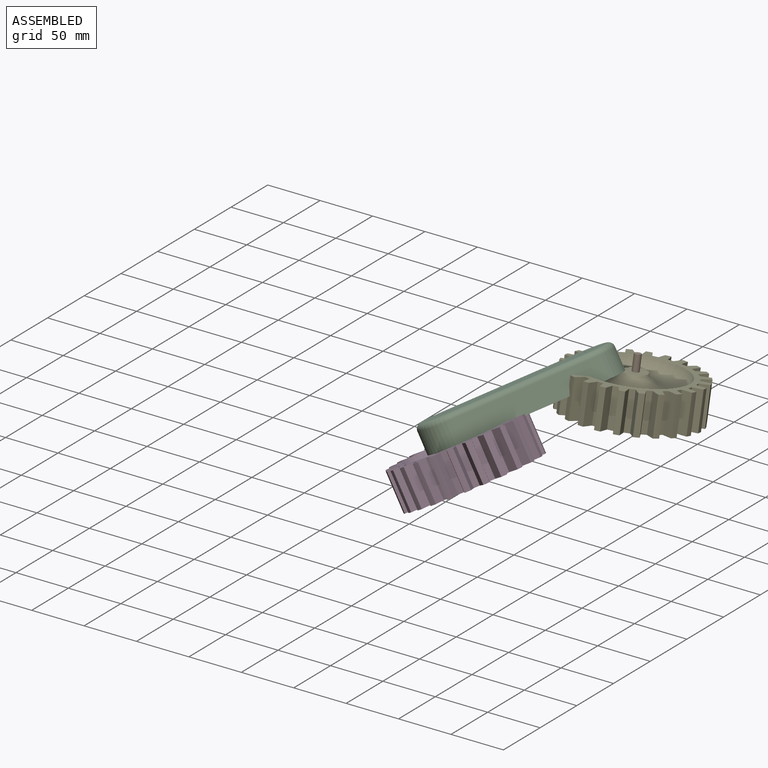
[diagram: assembled view]
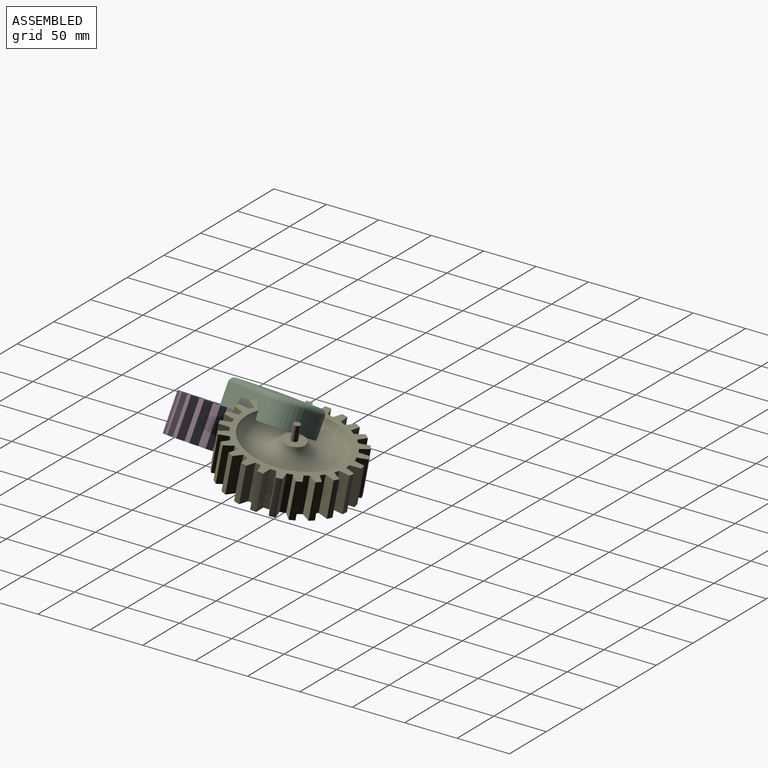
[diagram: assembled view, second angle]
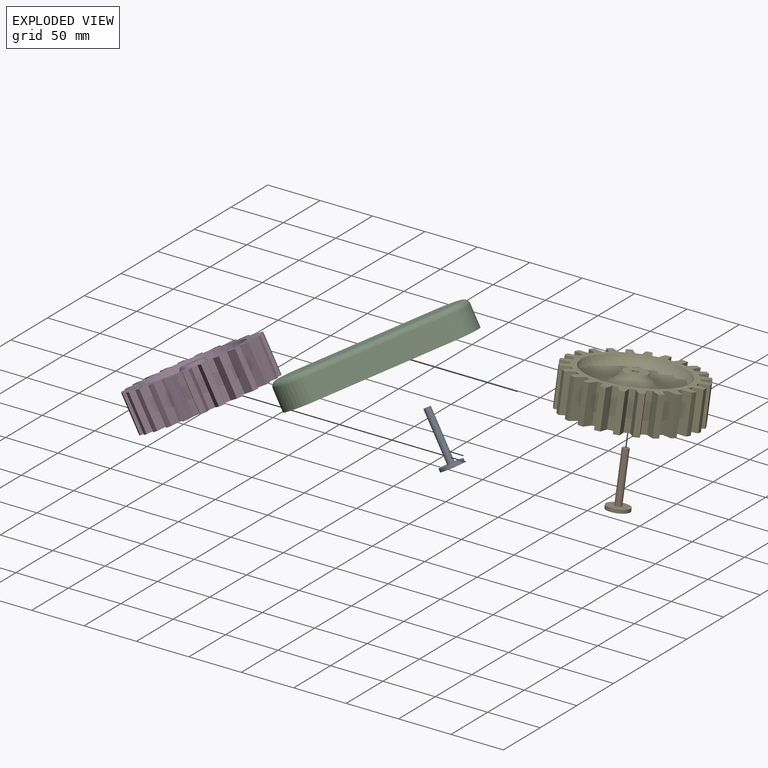
[diagram: exploded view]
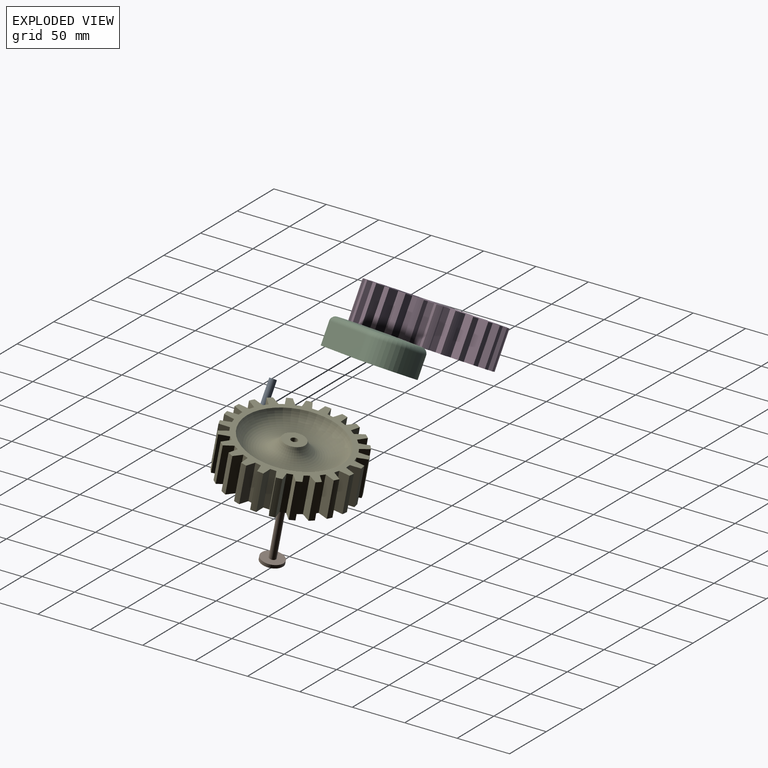
[diagram: exploded view, second angle]
ASSEMBLY  parts=5 mates=4
PART A: 5 faces, bbox 21.1x50.8x21.1 mm
  f0: cylinder r=3.17mm len=47.63mm, axis (0,1,0), area 950.1mm2, adj f2,f4
  f1: cylinder r=10.57mm len=21.14mm, axis (0,1,0), area 210.9mm2, adj f2,f3
  f2: plane 21.14x21.14mm, normal (0,-1,0), area 319.4mm2, adj f0,f1
  f3: plane 21.14x21.14mm, normal (0,1,0), area 351.1mm2, adj f1
  f4: plane 6.35x6.35mm, normal (0,-1,0), area 31.7mm2, adj f0
PART B: same geometry as A
PART C: 12 faces, bbox 172.6x25.4x55 mm
  f0: plane 117.6x20.32mm, normal (0,0,-1), area 2389.7mm2, adj f1,f3,f7,f9
  f1: cylinder r=25.4mm len=50.8mm, axis (0,1,0), area 1621.5mm2, adj f0,f2,f7,f11
  f2: plane 117.6x20.32mm, normal (0,0,1), area 2389.7mm2, adj f1,f3,f7,f10
  f3: cylinder r=25.4mm len=50.8mm, axis (0,1,0), area 1621.5mm2, adj f0,f2,f7,f8
  f4: cylinder r=3.17mm len=25.4mm, axis (0,1,0), area 506.7mm2, adj f6,f7
  f5: cylinder r=3.17mm len=25.4mm, axis (0,1,0), area 506.7mm2, adj f6,f7
  f6: plane 158.24x40.64mm, normal (0,-1,0), area 6013.2mm2, adj f4,f5,f8,f9,f10,f11
  f7: plane 168.4x50.8mm, normal (0,1,0), area 7937.7mm2, adj f0,f1,f2,f3,f4,f5
  f8: torus R=20.32mm, axis (0,-1,0), area 590.5mm2, adj f3,f6,f9,f10
  f9: cylinder r=5.08mm len=117.6mm, axis (-1,0,0), area 938.4mm2, adj f0,f6,f8,f11
  f10: cylinder r=5.08mm len=117.6mm, axis (1,0,0), area 938.4mm2, adj f2,f6,f8,f11
  f11: torus R=20.32mm, axis (0,-1,0), area 590.5mm2, adj f1,f6,f9,f10
PART D: 103 faces, bbox 50.9x120.8x120.8 mm
  f0: cylinder r=60.63mm len=35.93mm, axis (1,0,0), area 193.5mm2, adj f3,f92,f94,f100
  f1: plane 35.93x5.02mm, normal (0,0.26,0.97), area 186.8mm2, adj f2,f3,f92,f94
  f2: plane 35.93x8.23mm, normal (0,-0.86,0.51), area 344.8mm2, adj f1,f4,f92,f94
  f3: plane 35.93x9.6mm, normal (0,1,0.02), area 344.8mm2, adj f0,f1,f92,f94
  f4: cylinder r=60.63mm len=35.93mm, axis (1,0,0), area 193.5mm2, adj f2,f7,f92,f94
  f5: plane 35.93x4.5mm, normal (0,0.5,0.87), area 186.8mm2, adj f6,f7,f92,f94
  f6: plane 35.93x6.9mm, normal (0,-0.7,0.72), area 344.8mm2, adj f5,f8,f92,f94
  f7: plane 35.93x9.31mm, normal (0,0.97,-0.24), area 344.8mm2, adj f4,f5,f92,f94
  f8: cylinder r=60.63mm len=35.93mm, axis (1,0,0), area 193.5mm2, adj f6,f11,f92,f94
  f9: plane 35.93x3.68mm, normal (0,0.71,0.71), area 186.8mm2, adj f10,f11,f92,f94
  f10: plane 35.93x8.39mm, normal (0,-0.49,0.87), area 344.8mm2, adj f9,f12,f92,f94
  f11: plane 35.93x8.39mm, normal (0,0.87,-0.49), area 344.8mm2, adj f8,f9,f92,f94
  f12: cylinder r=60.63mm len=35.93mm, axis (1,0,0), area 193.5mm2, adj f10,f15,f92,f94
  f13: plane 35.93x4.5mm, normal (0,0.87,0.5), area 186.8mm2, adj f14,f15,f92,f94
  f14: plane 35.93x9.31mm, normal (0,-0.24,0.97), area 344.8mm2, adj f13,f16,f92,f94
  f15: plane 35.93x6.9mm, normal (0,0.72,-0.7), area 344.8mm2, adj f12,f13,f92,f94
  f16: cylinder r=60.63mm len=35.93mm, axis (1,0,0), area 193.5mm2, adj f14,f19,f92,f94
  f17: plane 35.93x5.02mm, normal (0,0.97,0.26), area 186.8mm2, adj f18,f19,f92,f94
  f18: plane 35.93x9.6mm, normal (0,0.02,1), area 344.8mm2, adj f17,f20,f92,f94
  f19: plane 35.93x8.23mm, normal (0,0.51,-0.86), area 344.8mm2, adj f16,f17,f92,f94
  f20: cylinder r=60.63mm len=35.93mm, axis (1,0,0), area 193.5mm2, adj f18,f23,f92,f94
  f21: plane 35.93x5.2mm, normal (0,1,0), area 186.8mm2, adj f22,f23,f92,f94
  f22: plane 35.93x9.23mm, normal (0,0.27,0.96), area 344.8mm2, adj f21,f24,f92,f94
  f23: plane 35.93x9.23mm, normal (0,0.27,-0.96), area 344.8mm2, adj f20,f21,f92,f94
  f24: cylinder r=60.63mm len=35.93mm, axis (1,0,0), area 193.5mm2, adj f22,f27,f92,f94
  f25: plane 35.93x5.02mm, normal (0,0.97,-0.26), area 186.8mm2, adj f26,f27,f92,f94
  f26: plane 35.93x8.23mm, normal (0,0.51,0.86), area 344.8mm2, adj f25,f28,f92,f94
  f27: plane 35.93x9.6mm, normal (0,0.02,-1), area 344.8mm2, adj f24,f25,f92,f94
  f28: cylinder r=60.63mm len=35.93mm, axis (1,0,0), area 193.5mm2, adj f26,f31,f92,f94
  f29: plane 35.93x4.5mm, normal (0,0.87,-0.5), area 186.8mm2, adj f30,f31,f92,f94
  f30: plane 35.93x6.9mm, normal (0,0.72,0.7), area 344.8mm2, adj f29,f32,f92,f94
  f31: plane 35.93x9.31mm, normal (0,-0.24,-0.97), area 344.8mm2, adj f28,f29,f92,f94
  f32: cylinder r=60.63mm len=35.93mm, axis (1,0,0), area 193.5mm2, adj f30,f35,f92,f94
  f33: plane 35.93x3.68mm, normal (0,0.71,-0.71), area 186.8mm2, adj f34,f35,f92,f94
  f34: plane 35.93x8.39mm, normal (0,0.87,0.49), area 344.8mm2, adj f33,f36,f92,f94
  f35: plane 35.93x8.39mm, normal (0,-0.49,-0.87), area 344.8mm2, adj f32,f33,f92,f94
  f36: cylinder r=60.63mm len=35.93mm, axis (1,0,0), area 193.5mm2, adj f34,f39,f92,f94
  f37: plane 35.93x4.5mm, normal (0,0.5,-0.87), area 186.8mm2, adj f38,f39,f92,f94
  f38: plane 35.93x9.31mm, normal (0,0.97,0.24), area 344.8mm2, adj f37,f40,f92,f94
  f39: plane 35.93x6.9mm, normal (0,-0.7,-0.72), area 344.8mm2, adj f36,f37,f92,f94
  f40: cylinder r=60.63mm len=35.93mm, axis (1,0,0), area 193.5mm2, adj f38,f43,f92,f94
  f41: plane 35.93x5.02mm, normal (0,0.26,-0.97), area 186.8mm2, adj f42,f43,f92,f94
  f42: plane 35.93x9.6mm, normal (0,1,-0.02), area 344.8mm2, adj f41,f44,f92,f94
  f43: plane 35.93x8.23mm, normal (0,-0.86,-0.51), area 344.8mm2, adj f40,f41,f92,f94
  f44: cylinder r=60.63mm len=35.93mm, axis (1,0,0), area 193.5mm2, adj f42,f47,f92,f94
  f45: plane 35.93x5.2mm, normal (0,0,-1), area 186.8mm2, adj f46,f47,f92,f94
  f46: plane 35.93x9.23mm, normal (0,0.96,-0.27), area 344.8mm2, adj f45,f48,f92,f94
  f47: plane 35.93x9.23mm, normal (0,-0.96,-0.27), area 344.8mm2, adj f44,f45,f92,f94
  f48: cylinder r=60.63mm len=35.93mm, axis (1,0,0), area 193.5mm2, adj f46,f51,f92,f94
  f49: plane 35.93x5.02mm, normal (0,-0.26,-0.97), area 186.8mm2, adj f50,f51,f92,f94
  f50: plane 35.93x8.23mm, normal (0,0.86,-0.51), area 344.8mm2, adj f49,f52,f92,f94
  f51: plane 35.93x9.6mm, normal (0,-1,-0.02), area 344.8mm2, adj f48,f49,f92,f94
  f52: cylinder r=60.63mm len=35.93mm, axis (1,0,0), area 193.5mm2, adj f50,f55,f92,f94
  f53: plane 35.93x4.5mm, normal (0,-0.5,-0.87), area 186.8mm2, adj f54,f55,f92,f94
  f54: plane 35.93x6.9mm, normal (0,0.7,-0.72), area 344.8mm2, adj f53,f56,f92,f94
  f55: plane 35.93x9.31mm, normal (0,-0.97,0.24), area 344.8mm2, adj f52,f53,f92,f94
  f56: cylinder r=60.63mm len=35.93mm, axis (1,0,0), area 193.5mm2, adj f54,f59,f92,f94
  f57: plane 35.93x3.68mm, normal (0,-0.71,-0.71), area 186.8mm2, adj f58,f59,f92,f94
  f58: plane 35.93x8.39mm, normal (0,0.49,-0.87), area 344.8mm2, adj f57,f60,f92,f94
  f59: plane 35.93x8.39mm, normal (0,-0.87,0.49), area 344.8mm2, adj f56,f57,f92,f94
  f60: cylinder r=60.63mm len=35.93mm, axis (1,0,0), area 193.5mm2, adj f58,f63,f92,f94
  f61: plane 35.93x4.5mm, normal (0,-0.87,-0.5), area 186.8mm2, adj f62,f63,f92,f94
  f62: plane 35.93x9.31mm, normal (0,0.24,-0.97), area 344.8mm2, adj f61,f64,f92,f94
  f63: plane 35.93x6.9mm, normal (0,-0.72,0.7), area 344.8mm2, adj f60,f61,f92,f94
  f64: cylinder r=60.63mm len=35.93mm, axis (1,0,0), area 193.5mm2, adj f62,f67,f92,f94
  f65: plane 35.93x5.02mm, normal (0,-0.97,-0.26), area 186.8mm2, adj f66,f67,f92,f94
  f66: plane 35.93x9.6mm, normal (0,-0.02,-1), area 344.8mm2, adj f65,f68,f92,f94
  f67: plane 35.93x8.23mm, normal (0,-0.51,0.86), area 344.8mm2, adj f64,f65,f92,f94
  f68: cylinder r=60.63mm len=35.93mm, axis (1,0,0), area 193.5mm2, adj f66,f71,f92,f94
  f69: plane 35.93x5.2mm, normal (0,-1,0), area 186.8mm2, adj f70,f71,f92,f94
  f70: plane 35.93x9.23mm, normal (0,-0.27,-0.96), area 344.8mm2, adj f69,f72,f92,f94
  f71: plane 35.93x9.23mm, normal (0,-0.27,0.96), area 344.8mm2, adj f68,f69,f92,f94
  f72: cylinder r=60.63mm len=35.93mm, axis (1,0,0), area 193.5mm2, adj f70,f75,f92,f94
  f73: plane 35.93x5.02mm, normal (0,-0.97,0.26), area 186.8mm2, adj f74,f75,f92,f94
  f74: plane 35.93x8.23mm, normal (0,-0.51,-0.86), area 344.8mm2, adj f73,f76,f92,f94
  f75: plane 35.93x9.6mm, normal (0,-0.02,1), area 344.8mm2, adj f72,f73,f92,f94
  f76: cylinder r=60.63mm len=35.93mm, axis (1,0,0), area 193.5mm2, adj f74,f79,f92,f94
  f77: plane 35.93x4.5mm, normal (0,-0.87,0.5), area 186.8mm2, adj f78,f79,f92,f94
  f78: plane 35.93x6.9mm, normal (0,-0.72,-0.7), area 344.8mm2, adj f77,f80,f92,f94
  f79: plane 35.93x9.31mm, normal (0,0.24,0.97), area 344.8mm2, adj f76,f77,f92,f94
  f80: cylinder r=60.63mm len=35.93mm, axis (1,0,0), area 193.5mm2, adj f78,f83,f92,f94
  f81: plane 35.93x3.68mm, normal (0,-0.71,0.71), area 186.8mm2, adj f82,f83,f92,f94
  f82: plane 35.93x8.39mm, normal (0,-0.87,-0.49), area 344.8mm2, adj f81,f84,f92,f94
  f83: plane 35.93x8.39mm, normal (0,0.49,0.87), area 344.8mm2, adj f80,f81,f92,f94
  f84: cylinder r=60.63mm len=35.93mm, axis (1,0,0), area 193.5mm2, adj f82,f87,f92,f94
  f85: plane 35.93x4.5mm, normal (0,-0.5,0.87), area 186.8mm2, adj f86,f87,f92,f94
  f86: plane 35.93x9.31mm, normal (0,-0.97,-0.24), area 344.8mm2, adj f85,f88,f92,f94
  f87: plane 35.93x6.9mm, normal (0,0.7,0.72), area 344.8mm2, adj f84,f85,f92,f94
  f88: cylinder r=60.63mm len=35.93mm, axis (1,0,0), area 193.5mm2, adj f86,f91,f92,f94
  f89: plane 35.93x5.02mm, normal (0,-0.26,0.97), area 186.8mm2, adj f90,f91,f92,f94
  f90: plane 35.93x9.6mm, normal (0,-1,0.02), area 344.8mm2, adj f89,f92,f93,f94
  f91: plane 35.93x8.23mm, normal (0,0.86,0.51), area 344.8mm2, adj f88,f89,f92,f94
  f92: plane 120.8x120.8mm, normal (1,0,0), area 3065.8mm2, adj f0,f1,f2,f3,f4,f5,f6,f7
  f93: cylinder r=60.63mm len=35.93mm, axis (1,0,0), area 193.5mm2, adj f90,f92,f94,f101
  f94: plane 120.8x120.8mm, normal (-1,0,0), area 3065.8mm2, adj f0,f1,f2,f3,f4,f5,f6,f7
  f95: plane 21.04x21.04mm, normal (1,0,0), area 315.9mm2, adj f96,f102
  f96: torus R=28.36mm, axis (1,0,0), area 8091.9mm2, adj f92,f95
  f97: torus R=28.36mm, axis (1,0,0), area 8091.9mm2, adj f94,f98
  f98: plane 21.04x21.04mm, normal (-1,0,0), area 315.9mm2, adj f97,f102
  f99: plane 35.93x5.2mm, normal (0,0,1), area 186.8mm2, adj f92,f94,f100,f101
  f100: plane 35.93x9.23mm, normal (0,-0.96,0.27), area 344.8mm2, adj f0,f92,f94,f99
  f101: plane 35.93x9.23mm, normal (0,0.96,0.27), area 344.8mm2, adj f92,f93,f94,f99
  f102: cylinder r=3.17mm len=35.93mm, axis (-1,0,0), area 716.7mm2, adj f95,f98
PART E: same geometry as D
PLACE A rot(axis=(-0.74,-0.6,0.29),129.7deg) t=(-2.65,-34.35,67.39)mm
PLACE B rot(axis=(-0.92,-0.24,0.31),105.8deg) t=(78.3,67.67,99.25)mm
PLACE C rot(axis=(-0.85,-0.51,0.12),114.1deg) t=(14.16,9.45,119.44)mm
PLACE D rot(axis=(-0.3,-0.82,-0.49),131.1deg) t=(-7.23,-33.98,75.16)mm
PLACE E rot(axis=(0.45,0.66,-0.6),105.9deg) t=(78.52,71.19,116.87)mm
MATE revolute E.f0 <-> E.f0  axis (-0.01,-0.2,-0.98) through (78.75,74.72,134.48)mm
MATE revolute E.f0 <-> B.f0  axis (-0.01,-0.2,-0.98) through (78.3,67.67,99.25)mm
MATE revolute A.f0 <-> C.f5  axis (-0.51,0.04,0.86) through (-28.4,-32.25,111.13)mm
MATE revolute D.f0 <-> A.f0  axis (-0.51,0.04,0.86) through (-16.33,-33.23,90.63)mm
